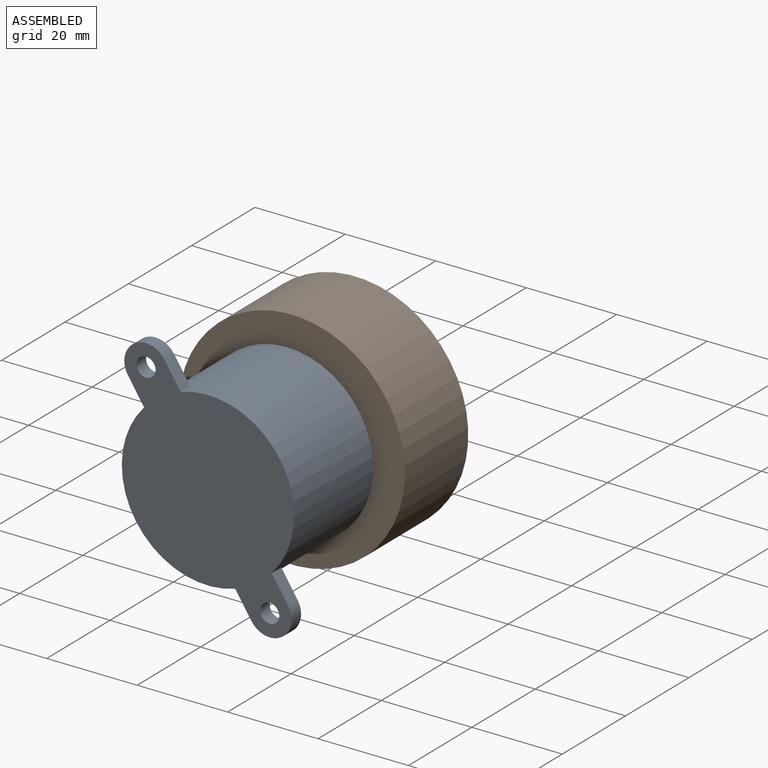
[diagram: assembled view]
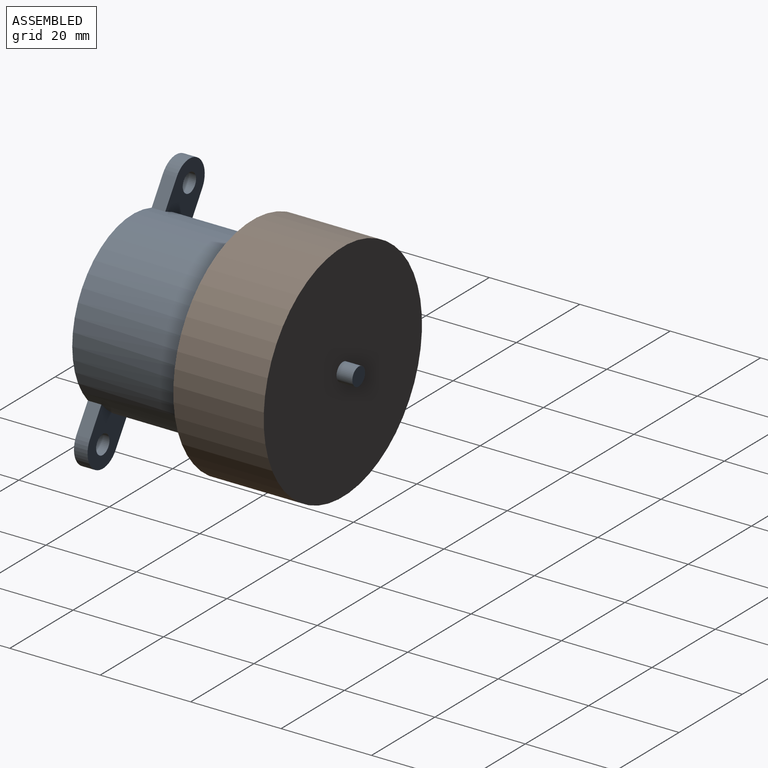
[diagram: assembled view, second angle]
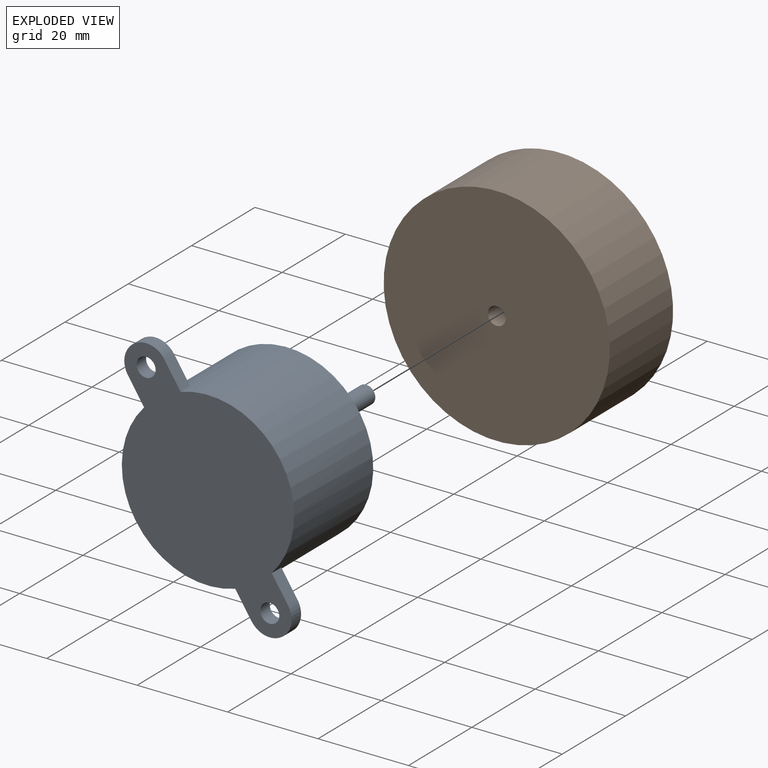
[diagram: exploded view]
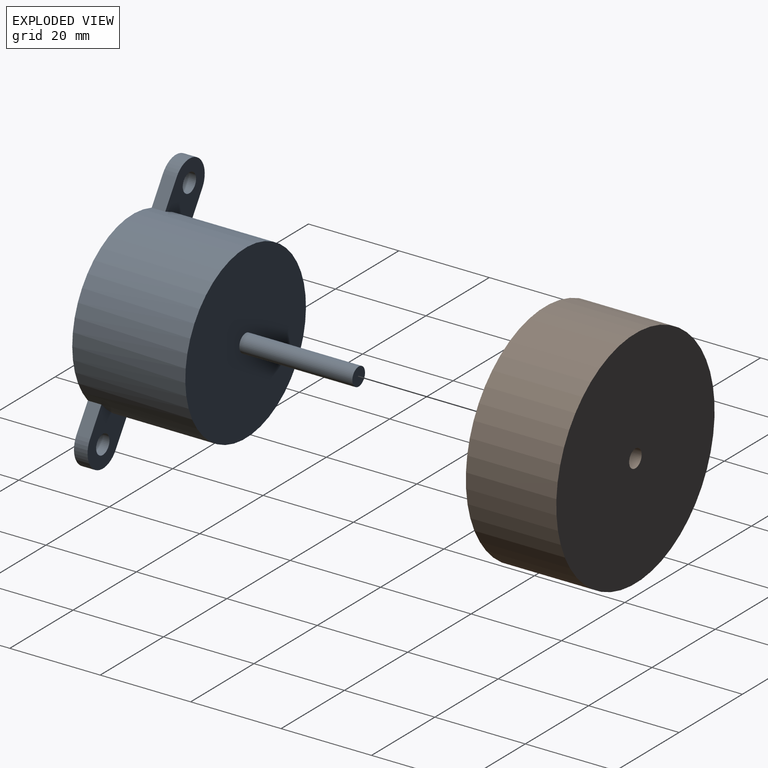
[diagram: exploded view, second angle]
ASSEMBLY  parts=2 mates=2
PART A: 15 faces, bbox 38.1x50x59.7 mm
  f0: cylinder r=19.05mm len=38.1mm, axis (0,1,0), area 2933.8mm2, adj f1,f2,f3,f5,f7,f8,f10,f12
  f1: plane 38.1x38.1mm, normal (0,-1,0), area 1127.5mm2, adj f0,f13
  f2: plane 59.66x38.1mm, normal (0,1,0), area 1304.5mm2, adj f0,f3,f4,f5,f6,f8,f9,f10
  f3: plane 6.57x3mm, normal (1,0,0), area 19.7mm2, adj f0,f2,f4,f7
  f4: cylinder r=4.83mm len=9.66mm, axis (0,1,0), area 45.5mm2, adj f2,f3,f5,f7
  f5: plane 6.57x3mm, normal (-1,0,0), area 19.7mm2, adj f0,f2,f4,f7
  f6: cylinder r=2.1mm len=4.2mm, axis (0,1,0), area 39.6mm2, adj f2,f7
  f7: plane 11.4x9.66mm, normal (0,-1,0), area 82.2mm2, adj f0,f3,f4,f5,f6
  f8: plane 6.57x3mm, normal (-1,0,0), area 19.7mm2, adj f0,f2,f9,f12
  f9: cylinder r=4.83mm len=9.66mm, axis (0,1,0), area 45.5mm2, adj f2,f8,f10,f12
  f10: plane 6.57x3mm, normal (1,0,0), area 19.7mm2, adj f0,f2,f9,f12
  f11: cylinder r=2.1mm len=4.2mm, axis (0,1,0), area 39.6mm2, adj f2,f12
  f12: plane 11.4x9.66mm, normal (0,-1,0), area 82.2mm2, adj f0,f8,f9,f10,f11
  f13: cylinder r=2mm len=25mm, axis (0,1,0), area 314.2mm2, adj f1,f14
  f14: plane 4x4mm, normal (0,-1,0), area 12.6mm2, adj f13
PART B: 4 faces, bbox 50x20x50 mm
  f0: cylinder r=25mm len=50mm, axis (0,1,0), area 3141.6mm2, adj f1,f2
  f1: plane 50x50mm, normal (0,-1,0), area 1951.2mm2, adj f0,f3
  f2: plane 50x50mm, normal (0,1,0), area 1951.2mm2, adj f0,f3
  f3: cylinder r=1.98mm len=20mm, axis (0,1,0), area 248.2mm2, adj f1,f2
PLACE A rot(axis=(0.29,0,-0.96),180deg) t=(35.87,-91.74,12.53)mm
PLACE B rot(axis=(0,-1,0),33.2deg) t=(35.87,-55.24,12.53)mm
MATE cylindrical B.f0 <-> A.f0  axis (0,1,0) through (35.87,-45.24,12.53)mm
MATE planar B.f0 <-> A.f0  axis (0,-1,0) through (35.87,-65.24,12.53)mm
